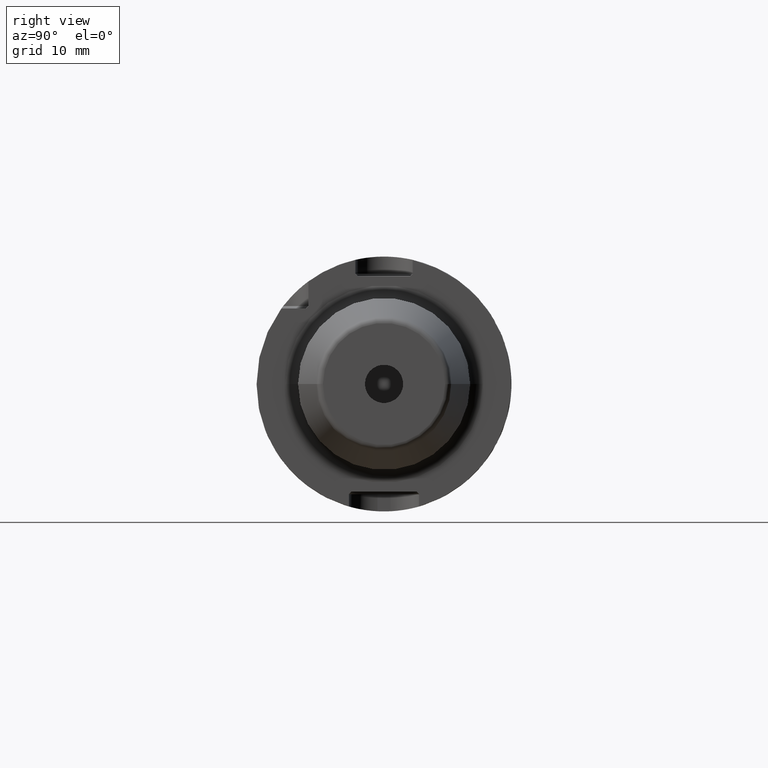
[diagram: clean part render]
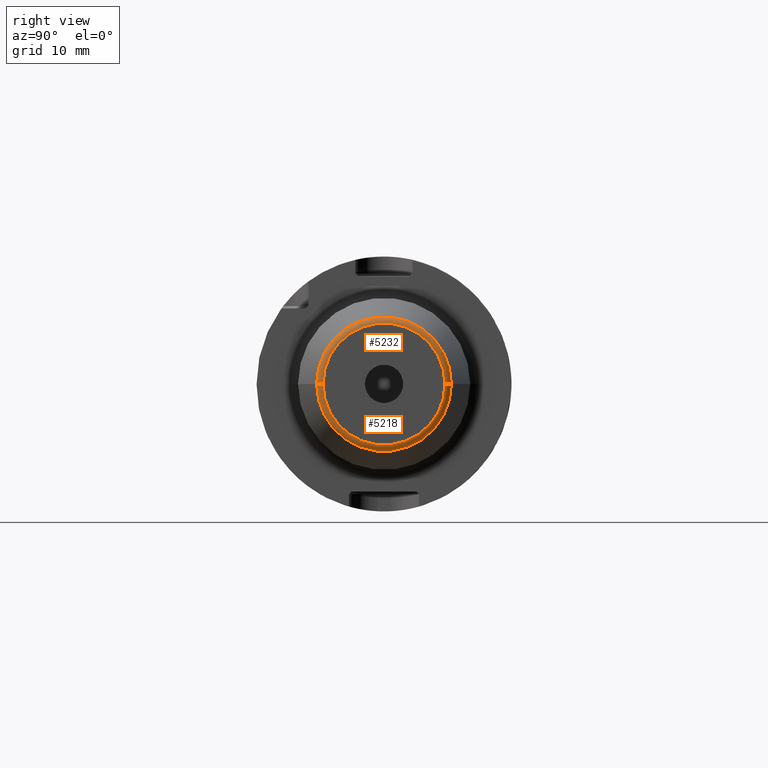
[diagram: same view with one multi-face feature highlighted, each face labeled with its STEP entity id]
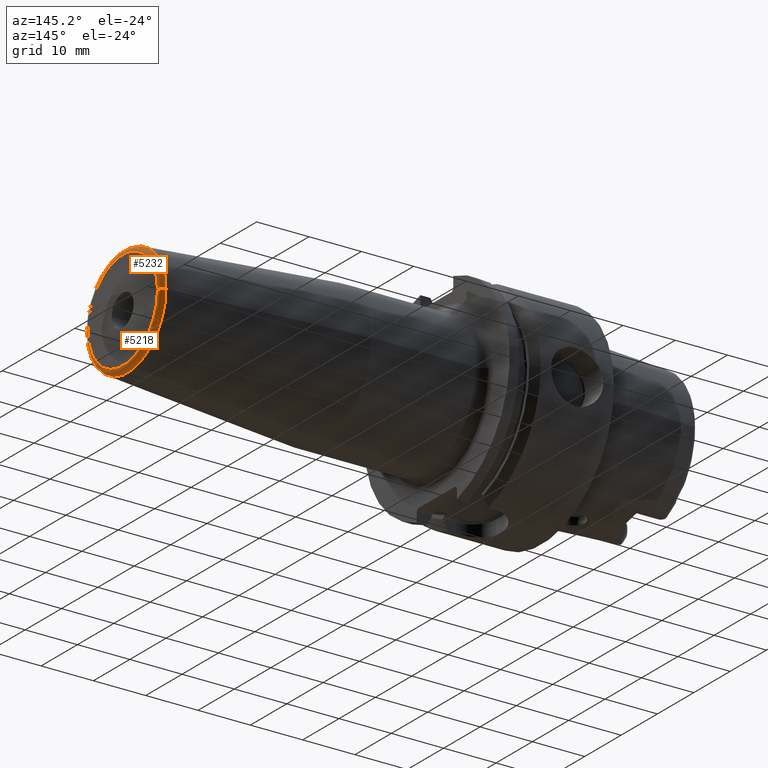
[diagram: same view with one multi-face feature highlighted, each face labeled with its STEP entity id]
A machine part, right view. The highlighted faces form ONE feature: a constant-radius fillet chain: 2 tangent blend faces with common blend radius 1 mm. The faces share edges in the B-rep.
A second angle (auxiliary view) of the same feature is appended — it is thin or edge-on in the first view.
Their STEP definitions:
[1] entity #5232 (Torus):
#1892=CARTESIAN_POINT('',(7.9E1,9.575609508342E0,2.102514690128E-11));
#1893=DIRECTION('',(0.E0,2.195698484142E-12,-1.E0));
#1894=DIRECTION('',(7.845909572794E-2,9.969173337331E-1,2.188929878493E-12));
#1895=AXIS2_PLACEMENT_3D('',#1892,#1893,#1894);
#1897=CARTESIAN_POINT('',(7.9E1,-9.575609508342E0,-2.102387014480E-11));
#1898=DIRECTION('',(0.E0,-2.195564910434E-12,1.E0));
#1899=DIRECTION('',(7.845909572794E-2,-9.969173337331E-1,-2.188796716548E-12));
#1900=AXIS2_PLACEMENT_3D('',#1897,#1898,#1899);
#1902=CARTESIAN_POINT('',(7.907845909573E1,0.E0,0.E0));
#1903=DIRECTION('',(-1.E0,0.E0,0.E0));
#1904=DIRECTION('',(0.E0,-1.E0,0.E0));
#1905=AXIS2_PLACEMENT_3D('',#1902,#1903,#1904);
#1922=CARTESIAN_POINT('',(8.E1,0.E0,0.E0));
#1923=DIRECTION('',(-1.E0,0.E0,0.E0));
#1924=DIRECTION('',(0.E0,-1.E0,0.E0));
#1925=AXIS2_PLACEMENT_3D('',#1922,#1923,#1924);
#3172=CARTESIAN_POINT('',(7.907845909573E1,1.057252684207E1,0.E0));
#3173=CARTESIAN_POINT('',(7.907845909573E1,-1.057252684207E1,0.E0));
#3174=VERTEX_POINT('',#3172);
#3175=VERTEX_POINT('',#3173);
#3176=CARTESIAN_POINT('',(8.E1,9.575609508342E0,0.E0));
#3177=CARTESIAN_POINT('',(8.E1,-9.575609508342E0,0.E0));
#3178=VERTEX_POINT('',#3176);
#3179=VERTEX_POINT('',#3177);
#5219=CARTESIAN_POINT('',(7.9E1,0.E0,0.E0));
#5220=DIRECTION('',(1.E0,0.E0,0.E0));
#5221=DIRECTION('',(0.E0,-9.999810241799E-1,-6.160461033104E-3));
#5222=AXIS2_PLACEMENT_3D('',#5219,#5220,#5221);
#5223=TOROIDAL_SURFACE('',#5222,9.575609508342E0,1.E0);
#5225=ORIENTED_EDGE('',*,*,#5224,.T.);
#5226=ORIENTED_EDGE('',*,*,#5214,.T.);
#5228=ORIENTED_EDGE('',*,*,#5227,.F.);
#5229=ORIENTED_EDGE('',*,*,#5210,.F.);
#5230=EDGE_LOOP('',(#5225,#5226,#5228,#5229));
#5231=FACE_OUTER_BOUND('',#5230,.F.);
#5232=ADVANCED_FACE('',(#5231),#5223,.T.);
#1896=CIRCLE('',#1895,1.E0);
#1901=CIRCLE('',#1900,1.E0);
#1906=CIRCLE('',#1905,1.057252684207E1);
#1926=CIRCLE('',#1925,9.575609508342E0);
#5210=EDGE_CURVE('',#3175,#3179,#1901,.T.);
#5214=EDGE_CURVE('',#3174,#3178,#1896,.T.);
#5224=EDGE_CURVE('',#3175,#3174,#1906,.T.);
#5227=EDGE_CURVE('',#3179,#3178,#1926,.T.);
[2] entity #5218 (Torus):
#1879=CARTESIAN_POINT('',(7.907845909573E1,0.E0,0.E0));
#1880=DIRECTION('',(-1.E0,0.E0,0.E0));
#1881=DIRECTION('',(0.E0,1.E0,0.E0));
#1882=AXIS2_PLACEMENT_3D('',#1879,#1880,#1881);
#1892=CARTESIAN_POINT('',(7.9E1,9.575609508342E0,2.102514690128E-11));
#1893=DIRECTION('',(0.E0,2.195698484142E-12,-1.E0));
#1894=DIRECTION('',(7.845909572794E-2,9.969173337331E-1,2.188929878493E-12));
#1895=AXIS2_PLACEMENT_3D('',#1892,#1893,#1894);
#1897=CARTESIAN_POINT('',(7.9E1,-9.575609508342E0,-2.102387014480E-11));
#1898=DIRECTION('',(0.E0,-2.195564910434E-12,1.E0));
#1899=DIRECTION('',(7.845909572794E-2,-9.969173337331E-1,-2.188796716548E-12));
#1900=AXIS2_PLACEMENT_3D('',#1897,#1898,#1899);
#1917=CARTESIAN_POINT('',(8.E1,0.E0,0.E0));
#1918=DIRECTION('',(-1.E0,0.E0,0.E0));
#1919=DIRECTION('',(0.E0,1.E0,0.E0));
#1920=AXIS2_PLACEMENT_3D('',#1917,#1918,#1919);
#3172=CARTESIAN_POINT('',(7.907845909573E1,1.057252684207E1,0.E0));
#3173=CARTESIAN_POINT('',(7.907845909573E1,-1.057252684207E1,0.E0));
#3174=VERTEX_POINT('',#3172);
#3175=VERTEX_POINT('',#3173);
#3176=CARTESIAN_POINT('',(8.E1,9.575609508342E0,0.E0));
#3177=CARTESIAN_POINT('',(8.E1,-9.575609508342E0,0.E0));
#3178=VERTEX_POINT('',#3176);
#3179=VERTEX_POINT('',#3177);
#5204=CARTESIAN_POINT('',(7.9E1,0.E0,0.E0));
#5205=DIRECTION('',(1.E0,0.E0,0.E0));
#5206=DIRECTION('',(0.E0,9.999810241799E-1,6.160461033104E-3));
#5207=AXIS2_PLACEMENT_3D('',#5204,#5205,#5206);
#5208=TOROIDAL_SURFACE('',#5207,9.575609508342E0,1.E0);
#5209=ORIENTED_EDGE('',*,*,#5194,.T.);
#5211=ORIENTED_EDGE('',*,*,#5210,.T.);
#5213=ORIENTED_EDGE('',*,*,#5212,.F.);
#5215=ORIENTED_EDGE('',*,*,#5214,.F.);
#5216=EDGE_LOOP('',(#5209,#5211,#5213,#5215));
#5217=FACE_OUTER_BOUND('',#5216,.F.);
#5218=ADVANCED_FACE('',(#5217),#5208,.T.);
#1883=CIRCLE('',#1882,1.057252684207E1);
#1896=CIRCLE('',#1895,1.E0);
#1901=CIRCLE('',#1900,1.E0);
#1921=CIRCLE('',#1920,9.575609508342E0);
#5194=EDGE_CURVE('',#3174,#3175,#1883,.T.);
#5210=EDGE_CURVE('',#3175,#3179,#1901,.T.);
#5212=EDGE_CURVE('',#3178,#3179,#1921,.T.);
#5214=EDGE_CURVE('',#3174,#3178,#1896,.T.);